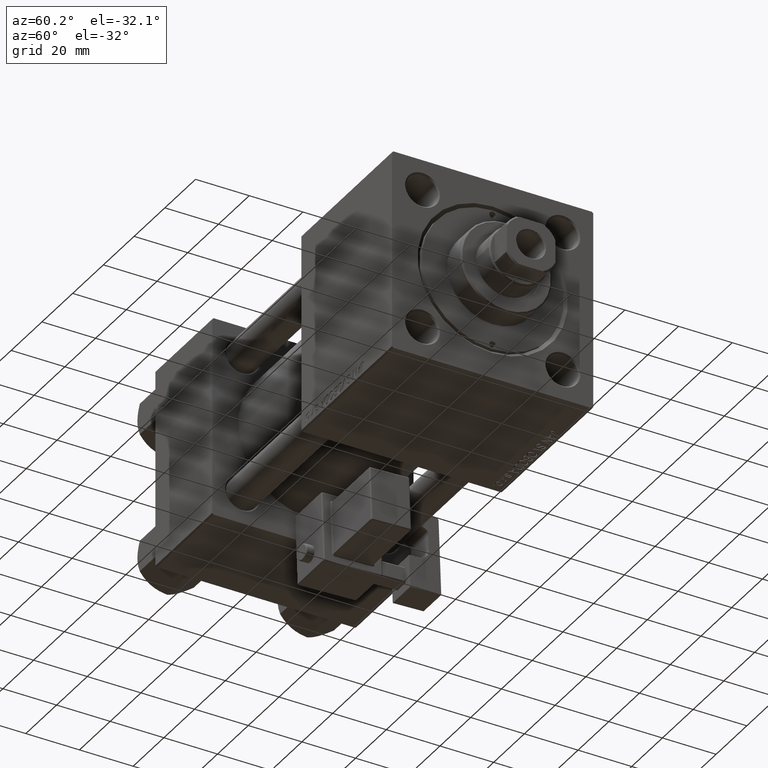
[diagram: clean part render]
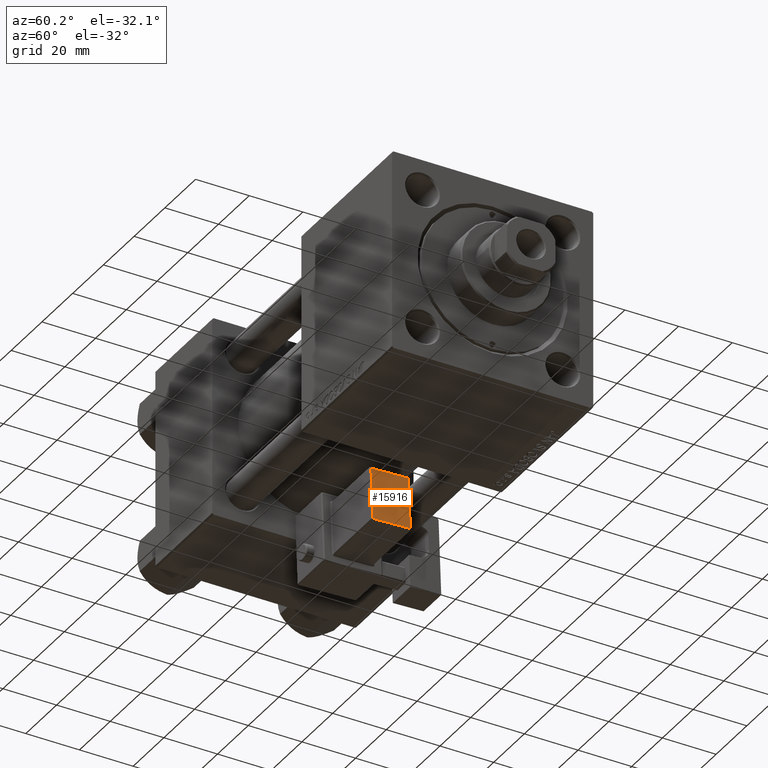
[diagram: same view with one face highlighted and labeled with its STEP entity id]
A machine part, auxiliary view. The second image highlights one B-rep face of the part: STEP entity #15916.
In plain terms, the highlighted planar face has unit normal (1, -0, 0).
Its self-contained STEP definition (entity closure, byte-faithful):
#1532 = LINE ( 'NONE', #22005, #12840 ) ;
#1908 = DIRECTION ( 'NONE',  ( -5.473822126268816683E-48, 1.000000000000000000, 1.156482317317871725E-16 ) ) ;
#2518 = VECTOR ( 'NONE', #19018, 1000.000000000000000 ) ;
#2544 = CARTESIAN_POINT ( 'NONE',  ( 33.74999999999999289, -36.25000000000000000, 21.50000000000000000 ) ) ;
#3454 = EDGE_CURVE ( 'NONE', #38582, #15450, #1532, .T. ) ;
#6198 = CARTESIAN_POINT ( 'NONE',  ( 33.75000000000000000, -1.755404897227950732E-31, 4.853889726050491084E-15 ) ) ;
#8362 = ORIENTED_EDGE ( 'NONE', *, *, #31854, .T. ) ;
#10444 = ORIENTED_EDGE ( 'NONE', *, *, #3454, .T. ) ;
#10704 = FACE_OUTER_BOUND ( 'NONE', #21751, .T. ) ;
#10815 = EDGE_CURVE ( 'NONE', #33971, #20277, #36115, .T. ) ;
#12840 = VECTOR ( 'NONE', #38225, 1000.000000000000000 ) ;
#15450 = VERTEX_POINT ( 'NONE', #25684 ) ;
#15916 = ADVANCED_FACE ( 'NONE', ( #10704 ), #18689, .T. ) ;
#16191 = CARTESIAN_POINT ( 'NONE',  ( 33.75000000000000000, -21.75000000000000000, 2.500000000000010214 ) ) ;
#18149 = EDGE_CURVE ( 'NONE', #20277, #38582, #18913, .T. ) ;
#18689 = PLANE ( 'NONE',  #28461 ) ;
#18913 = LINE ( 'NONE', #43091, #20836 ) ;
#19018 = DIRECTION ( 'NONE',  ( 6.018531076210116420E-32, -1.000000000000000000, -4.625929269271486900E-16 ) ) ;
#20277 = VERTEX_POINT ( 'NONE', #44381 ) ;
#20836 = VECTOR ( 'NONE', #1908, 1000.000000000000000 ) ;
#21751 = EDGE_LOOP ( 'NONE', ( #8362, #52099, #50605, #10444 ) ) ;
#22005 = CARTESIAN_POINT ( 'NONE',  ( 33.74999999999999289, -21.75000000000000000, 22.00000000000001066 ) ) ;
#25684 = CARTESIAN_POINT ( 'NONE',  ( 33.74999999999999289, -21.75000000000000000, 21.50000000000000711 ) ) ;
#27175 = DIRECTION ( 'NONE',  ( 1.000000000000000000, -2.006177025403371319E-32, 1.734723475976807587E-16 ) ) ;
#27546 = VECTOR ( 'NONE', #44066, 1000.000000000000000 ) ;
#28461 = AXIS2_PLACEMENT_3D ( 'NONE', #6198, #27175, #30914 ) ;
#30914 = DIRECTION ( 'NONE',  ( 1.734723475976807587E-16, 0.000000000000000000, -1.000000000000000000 ) ) ;
#31580 = CARTESIAN_POINT ( 'NONE',  ( 33.75000000000000000, -35.75000000000000000, 2.000000000000008438 ) ) ;
#31854 = EDGE_CURVE ( 'NONE', #15450, #33971, #51966, .T. ) ;
#33630 = CARTESIAN_POINT ( 'NONE',  ( 33.74999999999999289, -35.75000000000000000, 21.50000000000000000 ) ) ;
#33971 = VERTEX_POINT ( 'NONE', #33630 ) ;
#36115 = LINE ( 'NONE', #31580, #27546 ) ;
#38225 = DIRECTION ( 'NONE',  ( -1.734723475976807587E-16, 0.000000000000000000, 1.000000000000000000 ) ) ;
#38582 = VERTEX_POINT ( 'NONE', #16191 ) ;
#43091 = CARTESIAN_POINT ( 'NONE',  ( 33.75000000000000000, -21.24999999999999645, 2.500000000000010214 ) ) ;
#44066 = DIRECTION ( 'NONE',  ( 1.734723475976807587E-16, 0.000000000000000000, -1.000000000000000000 ) ) ;
#44381 = CARTESIAN_POINT ( 'NONE',  ( 33.75000000000000000, -35.75000000000000000, 2.500000000000008438 ) ) ;
#50605 = ORIENTED_EDGE ( 'NONE', *, *, #18149, .T. ) ;
#51966 = LINE ( 'NONE', #2544, #2518 ) ;
#52099 = ORIENTED_EDGE ( 'NONE', *, *, #10815, .T. ) ;